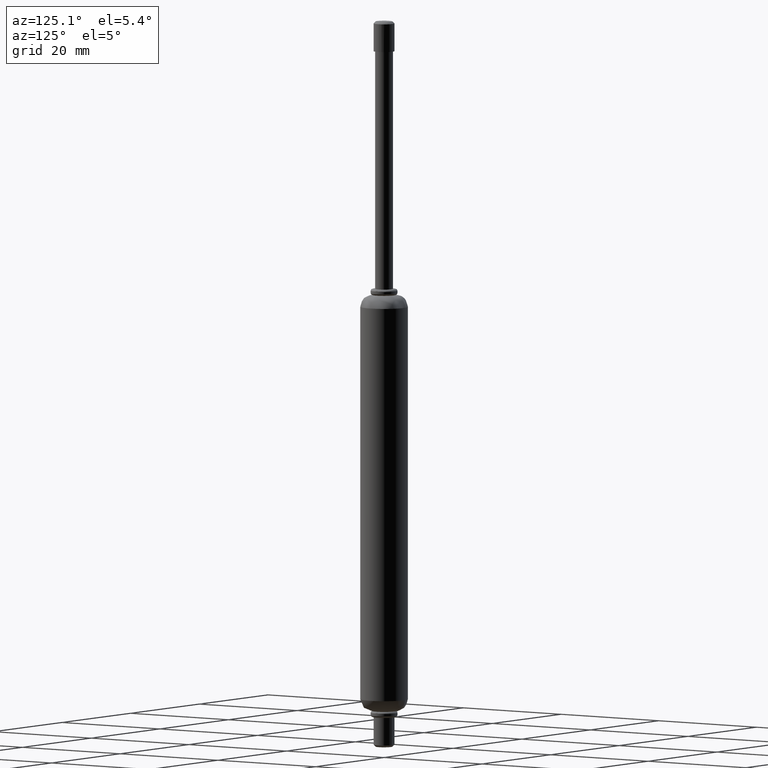
[diagram: clean part render]
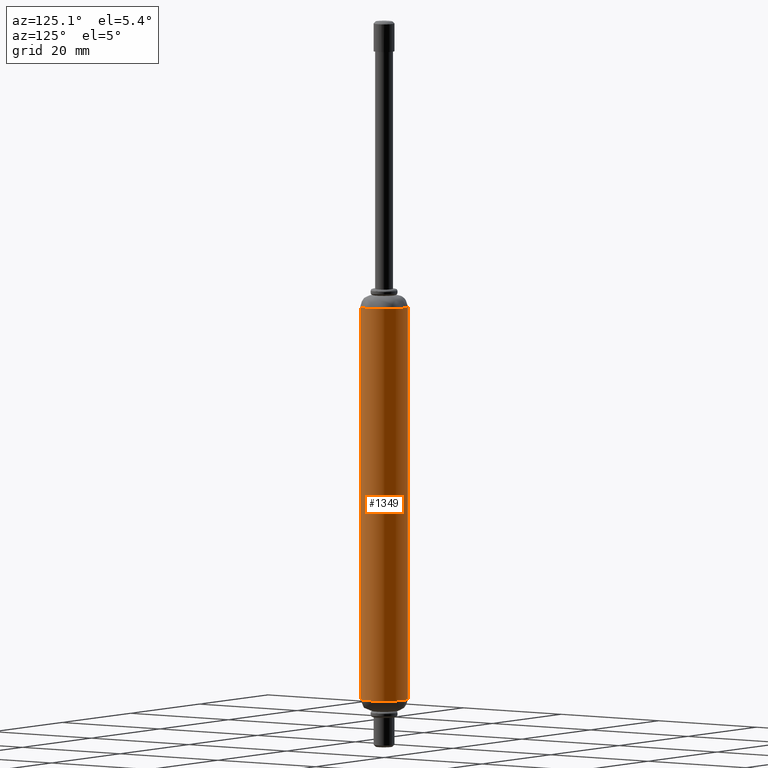
[diagram: same view with one face highlighted and labeled with its STEP entity id]
A machine part, auxiliary view. The second image highlights one B-rep face of the part: STEP entity #1349.
In plain terms, the highlighted face is a freeform B-spline surface patch.
Its self-contained STEP definition (entity closure, byte-faithful):
#1183=CARTESIAN_POINT('',(-3.744574315106067,-1.406471897566148,-0.349999999999991));
#1184=CARTESIAN_POINT('',(-3.955856077460021,-0.843957806861548,-0.349999999999991));
#1185=CARTESIAN_POINT('',(-3.992539193686881,-0.244194158139402,-0.349999999999991));
#1186=CARTESIAN_POINT('',(-4.236733351826284,3.748345035547671,-0.349999999999991));
#1187=CARTESIAN_POINT('',(-0.244194158139210,3.992539193687073,-0.349999999999991));
#1188=CARTESIAN_POINT('',(3.748345035547864,4.236733351826475,-0.349999999999991));
#1189=CARTESIAN_POINT('',(3.992539193687265,0.244194158139402,-0.349999999999991));
#1190=CARTESIAN_POINT('',(4.236733351826667,-3.748345035547671,-0.349999999999991));
#1191=CARTESIAN_POINT('',(0.244194158139594,-3.992539193687073,-0.349999999999991));
#1192=CARTESIAN_POINT('',(-3.744574315106067,-1.406471897566148,-69.691250000000281));
#1193=CARTESIAN_POINT('',(-3.955856077460021,-0.843957806861548,-69.691250000000281));
#1194=CARTESIAN_POINT('',(-3.992539193686881,-0.244194158139402,-69.691250000000281));
#1195=CARTESIAN_POINT('',(-4.236733351826284,3.748345035547671,-69.691250000000281));
#1196=CARTESIAN_POINT('',(-0.244194158139210,3.992539193687073,-69.691250000000281));
#1197=CARTESIAN_POINT('',(3.748345035547864,4.236733351826475,-69.691250000000281));
#1198=CARTESIAN_POINT('',(3.992539193687265,0.244194158139402,-69.691250000000281));
#1199=CARTESIAN_POINT('',(4.236733351826667,-3.748345035547671,-69.691250000000281));
#1200=CARTESIAN_POINT('',(0.244194158139594,-3.992539193687073,-69.691250000000281));
#1208=(BOUNDED_SURFACE()B_SPLINE_SURFACE(2,1,((#1183,#1192),(#1184,#1193),(#1185,#1194),(#1186,#1195),(#1187,#1196),(#1188,#1197),(#1189,#1198),(#1190,#1199),(#1191,#1200)),.UNSPECIFIED.,.F.,.F.,.U.)B_SPLINE_SURFACE_WITH_KNOTS((3,2,2,2,3),(2,2),(0.0,1.325483399593773,7.952900397562638,14.580317395531500,21.207734393500370),(0.0,69.341250000000286),.UNSPECIFIED.)GEOMETRIC_REPRESENTATION_ITEM()RATIONAL_B_SPLINE_SURFACE(((0.906274169979695,0.906274169979695),(0.941421356237309,0.941421356237309),(1.0,1.0),(0.707106781186548,0.707106781186548),(1.0,1.0),(0.707106781186548,0.707106781186548),(1.0,1.0),(0.707106781186548,0.707106781186548),(1.0,1.0)))REPRESENTATION_ITEM('')SURFACE());
#1209=CARTESIAN_POINT('',(-3.744574315069695,-1.406471897662997,-1.999999999999998));
#1210=VERTEX_POINT('',#1209);
#1211=CARTESIAN_POINT('',(-3.999999999999411,0.0,-2.0));
#1212=VERTEX_POINT('',#1211);
#1213=CARTESIAN_POINT('',(-3.744574315069695,-1.406471897662997,-1.999999999999998));
#1214=CARTESIAN_POINT('',(-3.999999999999416,-0.726429544373837,-2.000000000000000));
#1215=CARTESIAN_POINT('',(-3.999999999999411,0.0,-2.0));
#1223=(BOUNDED_CURVE()B_SPLINE_CURVE(2,(#1213,#1214,#1215),.UNSPECIFIED.,.F.,.U.)B_SPLINE_CURVE_WITH_KNOTS((3,3),(0.940284170890739,1.0),.UNSPECIFIED.)CURVE()GEOMETRIC_REPRESENTATION_ITEM()RATIONAL_B_SPLINE_CURVE((0.893499554625768,0.930038554392298,1.0))REPRESENTATION_ITEM(''));
#1224=EDGE_CURVE('',#1210,#1212,#1223,.T.);
#1225=ORIENTED_EDGE('',*,*,#1224,.T.);
#1226=CARTESIAN_POINT('',(-0.461856917383457,3.973246555131168,-2.000000000000012));
#1227=VERTEX_POINT('',#1226);
#1228=CARTESIAN_POINT('',(-3.999999999999411,0.0,-2.0));
#1229=CARTESIAN_POINT('',(-3.999999999999433,3.561966803171341,-2.000000000000000));
#1230=CARTESIAN_POINT('',(-0.461856917383457,3.973246555131169,-2.000000000000012));
#1238=(BOUNDED_CURVE()B_SPLINE_CURVE(2,(#1228,#1229,#1230),.UNSPECIFIED.,.F.,.U.)B_SPLINE_CURVE_WITH_KNOTS((3,3),(0.0,0.229999999993580),.UNSPECIFIED.)CURVE()GEOMETRIC_REPRESENTATION_ITEM()RATIONAL_B_SPLINE_CURVE((1.0,0.730538238699145,0.956886118178023))REPRESENTATION_ITEM(''));
#1239=EDGE_CURVE('',#1212,#1227,#1238,.T.);
#1240=ORIENTED_EDGE('',*,*,#1239,.T.);
#1241=CARTESIAN_POINT('',(3.999999999999817,0.0,-2.0));
#1242=VERTEX_POINT('',#1241);
#1243=CARTESIAN_POINT('',(-0.461856917383457,3.973246555131167,-2.000000000000012));
#1244=CARTESIAN_POINT('',(-0.231703316467456,3.999999999999625,-2.000000000000000));
#1245=CARTESIAN_POINT('',(1.920686E-013,3.999999999999625,-2.0));
#1246=CARTESIAN_POINT('',(3.999999999999818,3.999999999999626,-2.0));
#1247=CARTESIAN_POINT('',(3.999999999999817,0.0,-2.0));
#1255=(BOUNDED_CURVE()B_SPLINE_CURVE(2,(#1243,#1244,#1245,#1246,#1247),.UNSPECIFIED.,.F.,.U.)B_SPLINE_CURVE_WITH_KNOTS((3,2,3),(0.229999999993580,0.250000000000000,0.500000000000000),.UNSPECIFIED.)CURVE()GEOMETRIC_REPRESENTATION_ITEM()RATIONAL_B_SPLINE_CURVE((0.956886118178024,0.976568542487402,1.0,0.707106781186547,1.0))REPRESENTATION_ITEM(''));
#1256=EDGE_CURVE('',#1227,#1242,#1255,.T.);
#1257=ORIENTED_EDGE('',*,*,#1256,.T.);
#1258=CARTESIAN_POINT('',(0.244194158214591,-3.992539193682497,-1.999999999999998));
#1259=VERTEX_POINT('',#1258);
#1260=CARTESIAN_POINT('',(3.999999999999817,0.0,-2.0));
#1261=CARTESIAN_POINT('',(3.999999999999818,-3.762824267480791,-2.0));
#1262=CARTESIAN_POINT('',(0.244194158214591,-3.992539193682496,-1.999999999999998));
#1270=(BOUNDED_CURVE()B_SPLINE_CURVE(2,(#1260,#1261,#1262),.UNSPECIFIED.,.F.,.U.)B_SPLINE_CURVE_WITH_KNOTS((3,3),(0.500000000000000,0.739332962235486),.UNSPECIFIED.)CURVE()GEOMETRIC_REPRESENTATION_ITEM()RATIONAL_B_SPLINE_CURVE((1.0,0.719603993290761,0.976072041659308))REPRESENTATION_ITEM(''));
#1271=EDGE_CURVE('',#1242,#1259,#1270,.T.);
#1272=ORIENTED_EDGE('',*,*,#1271,.T.);
#1273=CARTESIAN_POINT('',(0.244194158214591,-3.992539193682474,-68.0));
#1274=VERTEX_POINT('',#1273);
#1275=CARTESIAN_POINT('',(0.244194158214591,-3.992539193682497,-1.999999999999998));
#1276=CARTESIAN_POINT('',(0.244194158214591,-3.992539193682474,-68.0));
#1277=QUASI_UNIFORM_CURVE('',1,(#1275,#1276),.UNSPECIFIED.,.F.,.U.);
#1278=EDGE_CURVE('',#1259,#1274,#1277,.T.);
#1279=ORIENTED_EDGE('',*,*,#1278,.T.);
#1280=CARTESIAN_POINT('',(3.999999999999772,0.0,-68.0));
#1281=VERTEX_POINT('',#1280);
#1282=CARTESIAN_POINT('',(3.999999999999772,0.0,-68.0));
#1283=CARTESIAN_POINT('',(3.999999999999772,-3.762824267480749,-68.0));
#1284=CARTESIAN_POINT('',(0.244194158214591,-3.992539193682474,-68.0));
#1292=(BOUNDED_CURVE()B_SPLINE_CURVE(2,(#1282,#1283,#1284),.UNSPECIFIED.,.F.,.U.)B_SPLINE_CURVE_WITH_KNOTS((3,3),(0.500000000000000,0.739332962235486),.UNSPECIFIED.)CURVE()GEOMETRIC_REPRESENTATION_ITEM()RATIONAL_B_SPLINE_CURVE((1.0,0.719603993290761,0.976072041659308))REPRESENTATION_ITEM(''));
#1293=EDGE_CURVE('',#1281,#1274,#1292,.T.);
#1294=ORIENTED_EDGE('',*,*,#1293,.F.);
#1295=CARTESIAN_POINT('',(-0.461856917383455,3.973246555131146,-68.000000000000284));
#1296=VERTEX_POINT('',#1295);
#1297=CARTESIAN_POINT('',(-0.461856917383455,3.973246555131146,-68.000000000000284));
#1298=CARTESIAN_POINT('',(-0.231703316467454,3.999999999999580,-68.0));
#1299=CARTESIAN_POINT('',(1.920686E-013,3.999999999999580,-68.0));
#1300=CARTESIAN_POINT('',(3.999999999999773,3.999999999999580,-68.0));
#1301=CARTESIAN_POINT('',(3.999999999999772,0.0,-68.0));
#1309=(BOUNDED_CURVE()B_SPLINE_CURVE(2,(#1297,#1298,#1299,#1300,#1301),.UNSPECIFIED.,.F.,.U.)B_SPLINE_CURVE_WITH_KNOTS((3,2,3),(0.229999999993580,0.250000000000000,0.500000000000000),.UNSPECIFIED.)CURVE()GEOMETRIC_REPRESENTATION_ITEM()RATIONAL_B_SPLINE_CURVE((0.956886118178023,0.976568542487402,1.0,0.707106781186547,1.0))REPRESENTATION_ITEM(''));
#1310=EDGE_CURVE('',#1296,#1281,#1309,.T.);
#1311=ORIENTED_EDGE('',*,*,#1310,.F.);
#1312=CARTESIAN_POINT('',(-3.999999999999388,0.0,-68.0));
#1313=VERTEX_POINT('',#1312);
#1314=CARTESIAN_POINT('',(-3.999999999999389,0.0,-68.0));
#1315=CARTESIAN_POINT('',(-3.999999999999389,3.561966803171299,-68.0));
#1316=CARTESIAN_POINT('',(-0.461856917383455,3.973246555131145,-68.000000000000284));
#1324=(BOUNDED_CURVE()B_SPLINE_CURVE(2,(#1314,#1315,#1316),.UNSPECIFIED.,.F.,.U.)B_SPLINE_CURVE_WITH_KNOTS((3,3),(0.0,0.229999999993580),.UNSPECIFIED.)CURVE()GEOMETRIC_REPRESENTATION_ITEM()RATIONAL_B_SPLINE_CURVE((1.0,0.730538238699145,0.956886118178023))REPRESENTATION_ITEM(''));
#1325=EDGE_CURVE('',#1313,#1296,#1324,.T.);
#1326=ORIENTED_EDGE('',*,*,#1325,.F.);
#1327=CARTESIAN_POINT('',(-3.744574315069681,-1.406471897662991,-68.0));
#1328=VERTEX_POINT('',#1327);
#1329=CARTESIAN_POINT('',(-3.744574315069681,-1.406471897662991,-68.0));
#1330=CARTESIAN_POINT('',(-3.999999999999389,-0.726429544373832,-68.0));
#1331=CARTESIAN_POINT('',(-3.999999999999389,0.0,-68.0));
#1339=(BOUNDED_CURVE()B_SPLINE_CURVE(2,(#1329,#1330,#1331),.UNSPECIFIED.,.F.,.U.)B_SPLINE_CURVE_WITH_KNOTS((3,3),(0.940284170890739,1.0),.UNSPECIFIED.)CURVE()GEOMETRIC_REPRESENTATION_ITEM()RATIONAL_B_SPLINE_CURVE((0.893499554625767,0.930038554392298,1.0))REPRESENTATION_ITEM(''));
#1340=EDGE_CURVE('',#1328,#1313,#1339,.T.);
#1341=ORIENTED_EDGE('',*,*,#1340,.F.);
#1342=CARTESIAN_POINT('',(-3.744574315069695,-1.406471897662997,-1.999999999999998));
#1343=CARTESIAN_POINT('',(-3.744574315069681,-1.406471897662991,-68.0));
#1344=QUASI_UNIFORM_CURVE('',1,(#1342,#1343),.UNSPECIFIED.,.F.,.U.);
#1345=EDGE_CURVE('',#1210,#1328,#1344,.T.);
#1346=ORIENTED_EDGE('',*,*,#1345,.F.);
#1347=EDGE_LOOP('',(#1225,#1240,#1257,#1272,#1279,#1294,#1311,#1326,#1341,#1346));
#1348=FACE_OUTER_BOUND('',#1347,.T.);
#1349=ADVANCED_FACE('',(#1348),#1208,.T.);